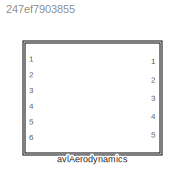
MODEL slx_247ef7903855
KIND library
CONFIG AbsTol = auto
CONFIG EnableMultiTasking = off
CONFIG FixedStep = auto
CONFIG MaxStep = auto
CONFIG MinStep = auto
CONFIG RelTol = 1e-3
CONFIG SampleTimeConstraint = Unconstrained
CONFIG SolverName = VariableStepAuto
CONFIG StartTime = 0.0
CONFIG StopTime = 10.0
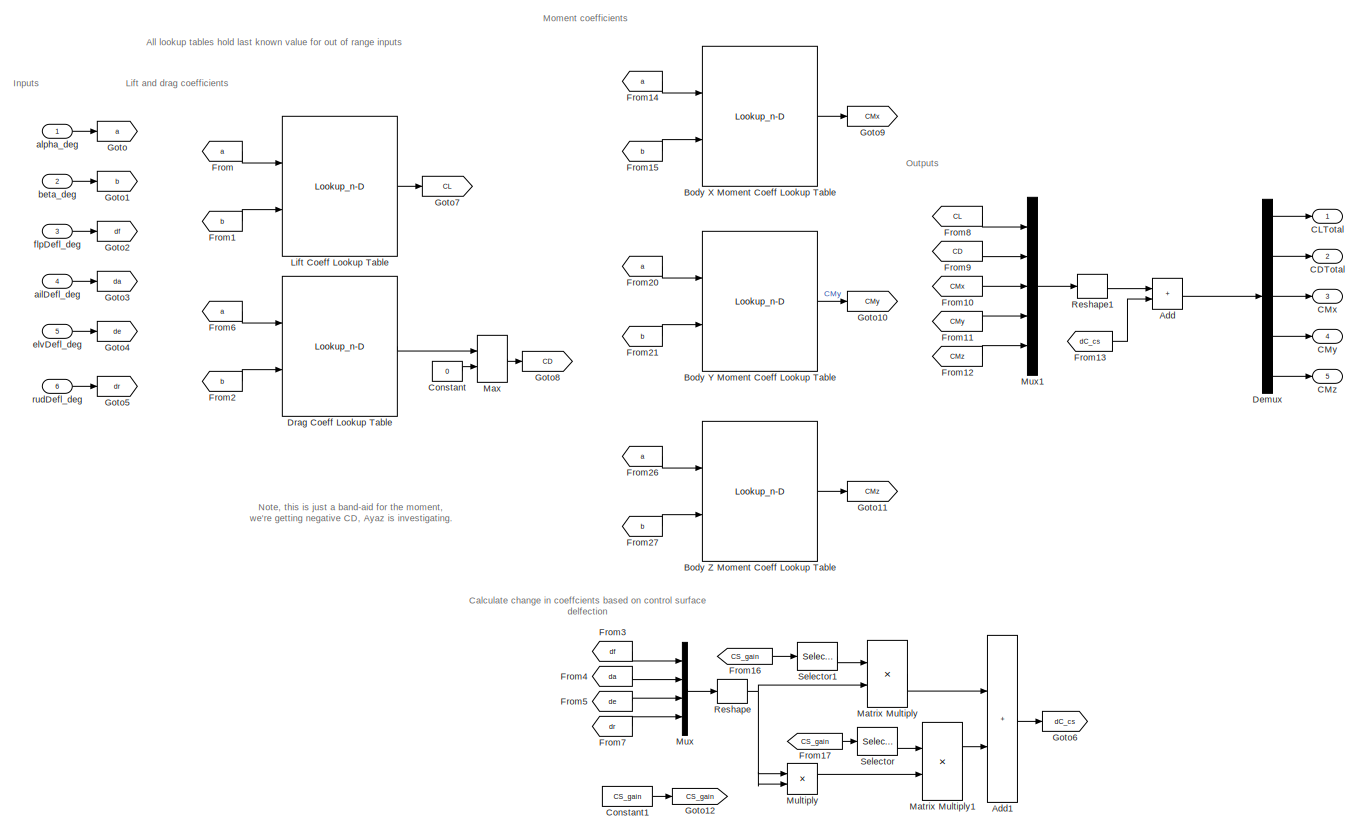
[diagram: avlAerodynamics - part 1/1, most of the canvas]
BLOCK [SubSystem] avlAerodynamics
  Ports = [6, 5]
  RequestExecContextInheritance = off
BLOCK [Sum] avlAerodynamics/Add
  IconShape = rectangular
  Ports = [2, 1]
BLOCK [Sum] avlAerodynamics/Add1
  IconShape = rectangular
  Ports = [2, 1]
BLOCK [Lookup_n-D] avlAerodynamics/Body X Moment Coeff Lookup Table
  BreakpointsForDimension3 = [5, 7]
  DataSpecification = Lookup table object
  ExtrapMethod = Clip
  InputPortMap = u0,u1
  InternalRulePriority = Speed
  LookupTableObject = CMxTable
  Ports = [2, 1]
  RndMeth = Simplest
  Table = reshape(repmat([4 5 6;16 19 20;10 18 23],1,2),[3,3,2])
  UseLastTableValue = on
BLOCK [Lookup_n-D] avlAerodynamics/Body Y Moment Coeff Lookup Table
  BreakpointsForDimension3 = [5, 7]
  DataSpecification = Lookup table object
  ExtrapMethod = Clip
  InputPortMap = u0,u1
  InternalRulePriority = Speed
  LookupTableObject = CMyTable
  Ports = [2, 1]
  RndMeth = Simplest
  Table = reshape(repmat([4 5 6;16 19 20;10 18 23],1,2),[3,3,2])
  UseLastTableValue = on
BLOCK [Lookup_n-D] avlAerodynamics/Body Z Moment Coeff Lookup Table
  BreakpointsForDimension3 = [5, 7]
  DataSpecification = Lookup table object
  ExtrapMethod = Clip
  InputPortMap = u0,u1
  InternalRulePriority = Speed
  LookupTableObject = CMzTable
  Ports = [2, 1]
  RndMeth = Simplest
  Table = reshape(repmat([4 5 6;16 19 20;10 18 23],1,2),[3,3,2])
  UseLastTableValue = on
BLOCK [Outport] avlAerodynamics/CDTotal
  Port = 2
  VectorParamsAs1DForOutWhenUnconnected = off
BLOCK [Outport] avlAerodynamics/CLTotal
  VectorParamsAs1DForOutWhenUnconnected = off
BLOCK [Outport] avlAerodynamics/CMx
  Port = 3
  VectorParamsAs1DForOutWhenUnconnected = off
BLOCK [Outport] avlAerodynamics/CMy
  Port = 4
  VectorParamsAs1DForOutWhenUnconnected = off
BLOCK [Outport] avlAerodynamics/CMz
  Port = 5
  VectorParamsAs1DForOutWhenUnconnected = off
BLOCK [Constant] avlAerodynamics/Constant
  Value = 0
BLOCK [Constant] avlAerodynamics/Constant1
  Value = CS_gain
BLOCK [Demux] avlAerodynamics/Demux
  Outputs = 5
  Ports = [1, 5]
BLOCK [Lookup_n-D] avlAerodynamics/Drag Coeff Lookup Table
  BreakpointsForDimension3 = [5, 7]
  DataSpecification = Lookup table object
  ExtrapMethod = Clip
  InputPortMap = u0,u1
  InternalRulePriority = Speed
  LookupTableObject = CDTable
  Ports = [2, 1]
  RndMeth = Simplest
  Table = reshape(repmat([4 5 6;16 19 20;10 18 23],1,2),[3,3,2])
  UseLastTableValue = on
BLOCK [From] avlAerodynamics/From
  GotoTag = a
BLOCK [From] avlAerodynamics/From1
  GotoTag = b
BLOCK [From] avlAerodynamics/From10
  GotoTag = CMx
BLOCK [From] avlAerodynamics/From11
  GotoTag = CMy
BLOCK [From] avlAerodynamics/From12
  GotoTag = CMz
BLOCK [From] avlAerodynamics/From13
  GotoTag = dC_cs
BLOCK [From] avlAerodynamics/From14
  GotoTag = a
BLOCK [From] avlAerodynamics/From15
  GotoTag = b
BLOCK [From] avlAerodynamics/From16
  GotoTag = CS_gain
BLOCK [From] avlAerodynamics/From17
  GotoTag = CS_gain
BLOCK [From] avlAerodynamics/From2
  GotoTag = b
BLOCK [From] avlAerodynamics/From20
  GotoTag = a
BLOCK [From] avlAerodynamics/From21
  GotoTag = b
BLOCK [From] avlAerodynamics/From26
  GotoTag = a
BLOCK [From] avlAerodynamics/From27
  GotoTag = b
BLOCK [From] avlAerodynamics/From3
  GotoTag = df
BLOCK [From] avlAerodynamics/From4
  GotoTag = da
BLOCK [From] avlAerodynamics/From5
  GotoTag = de
BLOCK [From] avlAerodynamics/From6
  GotoTag = a
BLOCK [From] avlAerodynamics/From7
  GotoTag = dr
BLOCK [From] avlAerodynamics/From8
  GotoTag = CL
BLOCK [From] avlAerodynamics/From9
  GotoTag = CD
BLOCK [Goto] avlAerodynamics/Goto
  GotoTag = a
BLOCK [Goto] avlAerodynamics/Goto1
  GotoTag = b
BLOCK [Goto] avlAerodynamics/Goto10
  GotoTag = CMy
BLOCK [Goto] avlAerodynamics/Goto11
  GotoTag = CMz
BLOCK [Goto] avlAerodynamics/Goto12
  GotoTag = CS_gain
BLOCK [Goto] avlAerodynamics/Goto2
  GotoTag = df
BLOCK [Goto] avlAerodynamics/Goto3
  GotoTag = da
BLOCK [Goto] avlAerodynamics/Goto4
  GotoTag = de
BLOCK [Goto] avlAerodynamics/Goto5
  GotoTag = dr
BLOCK [Goto] avlAerodynamics/Goto6
  GotoTag = dC_cs
BLOCK [Goto] avlAerodynamics/Goto7
  GotoTag = CL
BLOCK [Goto] avlAerodynamics/Goto8
  GotoTag = CD
BLOCK [Goto] avlAerodynamics/Goto9
  GotoTag = CMx
BLOCK [Lookup_n-D] avlAerodynamics/Lift Coeff Lookup Table
  BreakpointsForDimension3 = [5, 7]
  DataSpecification = Lookup table object
  ExtrapMethod = Clip
  InputPortMap = u0,u1
  InternalRulePriority = Speed
  LookupTableObject = CLTable
  Ports = [2, 1]
  RndMeth = Simplest
  Table = reshape(repmat([4 5 6;16 19 20;10 18 23],1,2),[3,3,2])
  UseLastTableValue = on
BLOCK [Product] avlAerodynamics/Matrix Multiply
  Multiplication = Matrix(*)
  Ports = [2, 1]
BLOCK [Product] avlAerodynamics/Matrix Multiply1
  Multiplication = Matrix(*)
  Ports = [2, 1]
BLOCK [MinMax] avlAerodynamics/Max
  Function = max
  Inputs = 2
  Ports = [2, 1]
BLOCK [Product] avlAerodynamics/Multiply
  Ports = [2, 1]
BLOCK [Mux] avlAerodynamics/Mux
  DisplayOption = bar
  Ports = [4, 1]
BLOCK [Mux] avlAerodynamics/Mux1
  DisplayOption = bar
  Inputs = 5
  Ports = [5, 1]
BLOCK [Reshape] avlAerodynamics/Reshape
  OutputDimensionality = Column vector (2-D)
  Ports = [1, 1]
BLOCK [Reshape] avlAerodynamics/Reshape1
  OutputDimensionality = Column vector (2-D)
  Ports = [1, 1]
BLOCK [Selector] avlAerodynamics/Selector
  IndexOptions = Select all,Select all,Index vector (dialog)
  Indices = [1 3],1,1
  InputPortWidth = 3
  NumberOfDimensions = 3
  OutputSizes = 1,1,1
  Ports = [1, 1]
BLOCK [Selector] avlAerodynamics/Selector1
  IndexOptions = Select all,Select all,Index vector (dialog)
  Indices = [1 3],1,2
  InputPortWidth = 3
  NumberOfDimensions = 3
  OutputSizes = 1,1,1
  Ports = [1, 1]
BLOCK [Inport] avlAerodynamics/ailDefl_deg
  Port = 4
BLOCK [Inport] avlAerodynamics/alpha_deg
BLOCK [Inport] avlAerodynamics/beta_deg
  Port = 2
BLOCK [Inport] avlAerodynamics/elvDefl_deg
  Port = 5
BLOCK [Inport] avlAerodynamics/flpDefl_deg
  Port = 3
BLOCK [Inport] avlAerodynamics/rudDefl_deg
  Port = 6
ANNOTATION avlAerodynamics: All lookup tables hold last known value for out of range inputs
ANNOTATION avlAerodynamics: Calculate change in coeffcients based on control surface delfection
ANNOTATION avlAerodynamics: Inputs
ANNOTATION avlAerodynamics: Lift and drag coefficients
ANNOTATION avlAerodynamics: Moment coefficients
ANNOTATION avlAerodynamics: Note, this is just a band-aid for the moment, we're getting negative CD, Ayaz is investigating.
ANNOTATION avlAerodynamics: Outputs
LINE avlAerodynamics/Add1:1 -> avlAerodynamics/Goto6:1
LINE avlAerodynamics/Add:1 -> avlAerodynamics/Demux:1
LINE avlAerodynamics/Body X Moment Coeff Lookup Table:1 -> avlAerodynamics/Goto9:1
LINE avlAerodynamics/Body Y Moment Coeff Lookup Table:1 -> avlAerodynamics/Goto10:1
LINE avlAerodynamics/Body Z Moment Coeff Lookup Table:1 -> avlAerodynamics/Goto11:1
LINE avlAerodynamics/Constant1:1 -> avlAerodynamics/Goto12:1
LINE avlAerodynamics/Constant:1 -> avlAerodynamics/Max:2
LINE avlAerodynamics/Demux:1 -> avlAerodynamics/CLTotal:1
LINE avlAerodynamics/Demux:2 -> avlAerodynamics/CDTotal:1
LINE avlAerodynamics/Demux:3 -> avlAerodynamics/CMx:1
LINE avlAerodynamics/Demux:4 -> avlAerodynamics/CMy:1
LINE avlAerodynamics/Demux:5 -> avlAerodynamics/CMz:1
LINE avlAerodynamics/Drag Coeff Lookup Table:1 -> avlAerodynamics/Max:1
LINE avlAerodynamics/From10:1 -> avlAerodynamics/Mux1:3
LINE avlAerodynamics/From11:1 -> avlAerodynamics/Mux1:4
LINE avlAerodynamics/From12:1 -> avlAerodynamics/Mux1:5
LINE avlAerodynamics/From13:1 -> avlAerodynamics/Add:2
LINE avlAerodynamics/From14:1 -> avlAerodynamics/Body X Moment Coeff Lookup Table:1
LINE avlAerodynamics/From15:1 -> avlAerodynamics/Body X Moment Coeff Lookup Table:2
LINE avlAerodynamics/From16:1 -> avlAerodynamics/Selector1:1
LINE avlAerodynamics/From17:1 -> avlAerodynamics/Selector:1
LINE avlAerodynamics/From1:1 -> avlAerodynamics/Lift Coeff Lookup Table:2
LINE avlAerodynamics/From20:1 -> avlAerodynamics/Body Y Moment Coeff Lookup Table:1
LINE avlAerodynamics/From21:1 -> avlAerodynamics/Body Y Moment Coeff Lookup Table:2
LINE avlAerodynamics/From26:1 -> avlAerodynamics/Body Z Moment Coeff Lookup Table:1
LINE avlAerodynamics/From27:1 -> avlAerodynamics/Body Z Moment Coeff Lookup Table:2
LINE avlAerodynamics/From2:1 -> avlAerodynamics/Drag Coeff Lookup Table:2
LINE avlAerodynamics/From3:1 -> avlAerodynamics/Mux:1
LINE avlAerodynamics/From4:1 -> avlAerodynamics/Mux:2
LINE avlAerodynamics/From5:1 -> avlAerodynamics/Mux:3
LINE avlAerodynamics/From6:1 -> avlAerodynamics/Drag Coeff Lookup Table:1
LINE avlAerodynamics/From7:1 -> avlAerodynamics/Mux:4
LINE avlAerodynamics/From8:1 -> avlAerodynamics/Mux1:1
LINE avlAerodynamics/From9:1 -> avlAerodynamics/Mux1:2
LINE avlAerodynamics/From:1 -> avlAerodynamics/Lift Coeff Lookup Table:1
LINE avlAerodynamics/Lift Coeff Lookup Table:1 -> avlAerodynamics/Goto7:1
LINE avlAerodynamics/Matrix Multiply1:1 -> avlAerodynamics/Add1:2
LINE avlAerodynamics/Matrix Multiply:1 -> avlAerodynamics/Add1:1
LINE avlAerodynamics/Max:1 -> avlAerodynamics/Goto8:1
LINE avlAerodynamics/Multiply:1 -> avlAerodynamics/Matrix Multiply1:2
LINE avlAerodynamics/Mux1:1 -> avlAerodynamics/Reshape1:1
LINE avlAerodynamics/Mux:1 -> avlAerodynamics/Reshape:1
LINE avlAerodynamics/Reshape1:1 -> avlAerodynamics/Add:1
NET avlAerodynamics/Reshape:1 -> avlAerodynamics/Matrix Multiply:2, avlAerodynamics/Multiply:1, avlAerodynamics/Multiply:2
LINE avlAerodynamics/Selector1:1 -> avlAerodynamics/Matrix Multiply:1
LINE avlAerodynamics/Selector:1 -> avlAerodynamics/Matrix Multiply1:1
LINE avlAerodynamics/ailDefl_deg:1 -> avlAerodynamics/Goto3:1
LINE avlAerodynamics/alpha_deg:1 -> avlAerodynamics/Goto:1
LINE avlAerodynamics/beta_deg:1 -> avlAerodynamics/Goto1:1
LINE avlAerodynamics/elvDefl_deg:1 -> avlAerodynamics/Goto4:1
LINE avlAerodynamics/flpDefl_deg:1 -> avlAerodynamics/Goto2:1
LINE avlAerodynamics/rudDefl_deg:1 -> avlAerodynamics/Goto5:1
note: NET lines group one-source signal fan-out (src -> all destinations, sorted); 1:1 wires keep LINE
